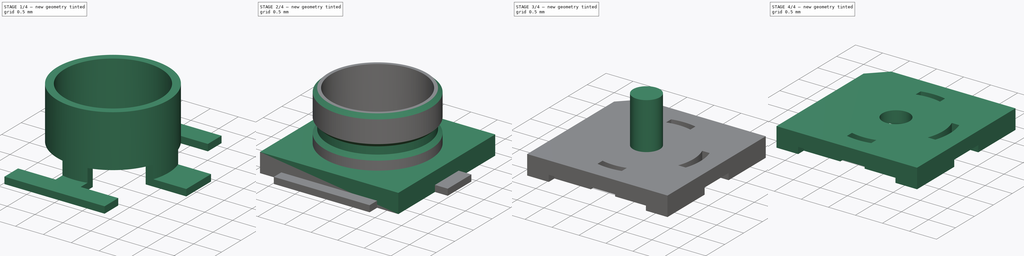
[diagram: build sequence overview — one tinted view per stage of 4, left to right]
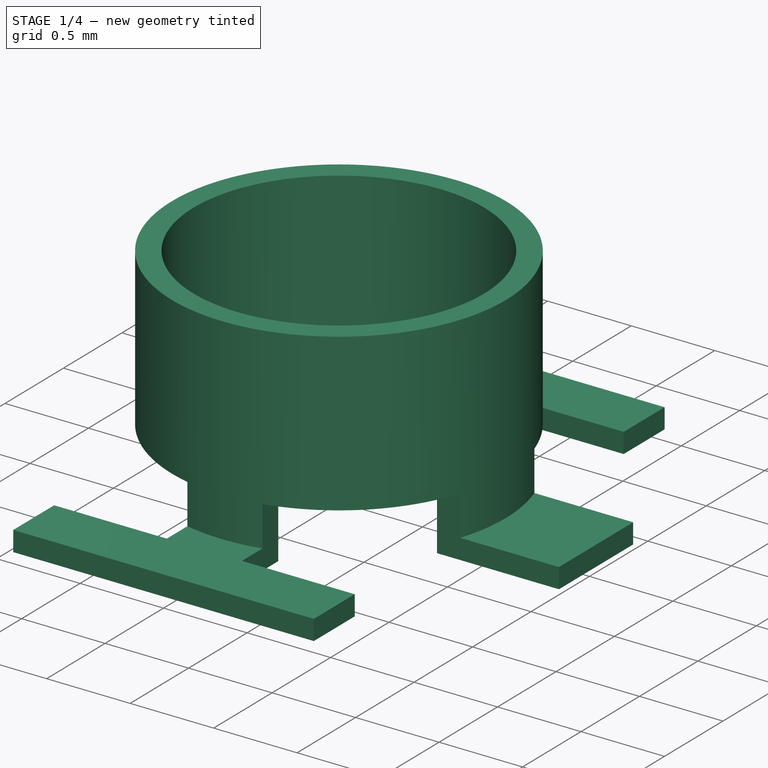
[diagram: stage 1 of 4 — iso view after this stage's code; geometry added in this stage tinted green]
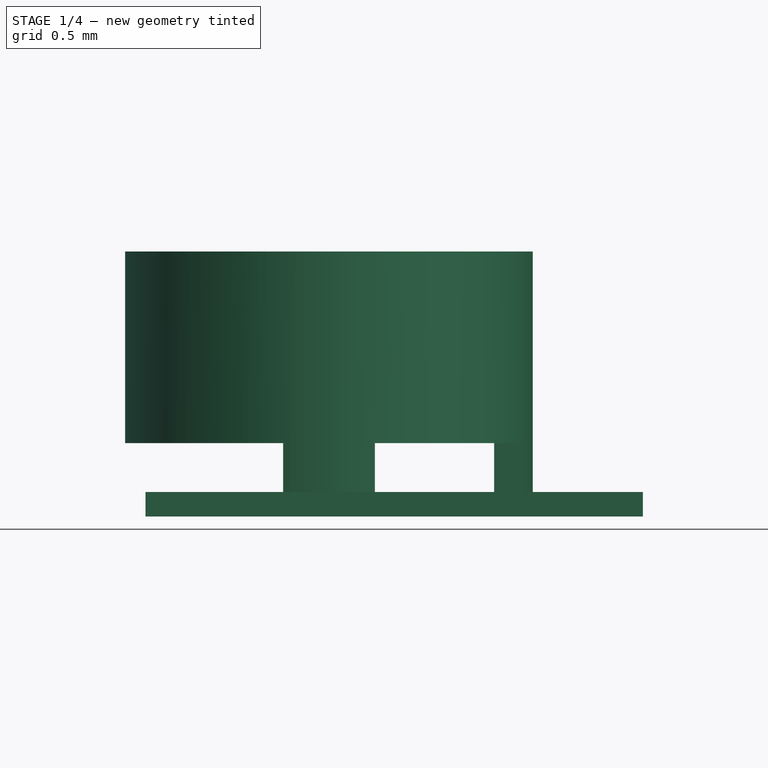
[diagram: stage 1 of 4 — front view after this stage's code; geometry added in this stage tinted green]
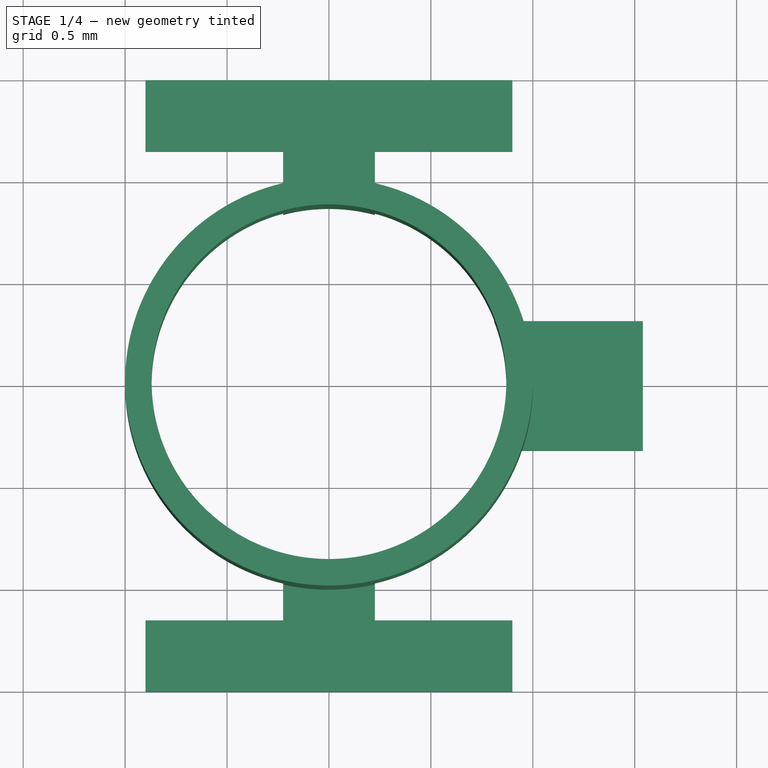
[diagram: stage 1 of 4 — top view after this stage's code; geometry added in this stage tinted green]
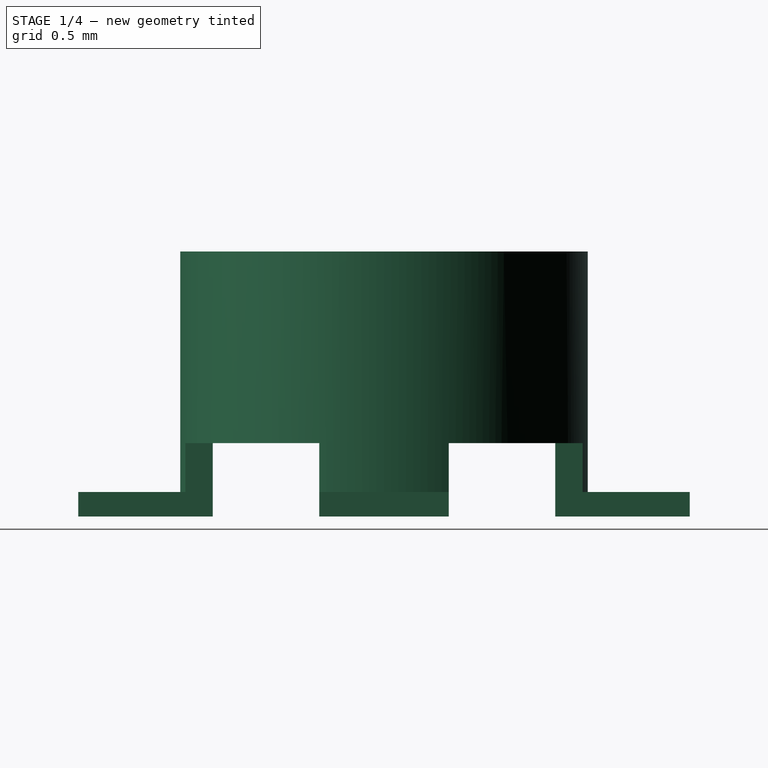
[diagram: stage 1 of 4 — right view after this stage's code; geometry added in this stage tinted green]
FCSTD DOCUMENT  (FreeCAD 1.0R38641 +468 (Git))
Label: MCRF_73412
License: All rights reserved
objects: Sketcher::SketchObject×7, PartDesign::Pad×5, PartDesign::Body×5, PartDesign::FeatureBase×2, Part::Cut×2, Spreadsheet::Sheet×1, PartDesign::Pocket×1, PartDesign::Groove×1, PartDesign::Fillet×1
note: 49 computed .brp shape members not serialized (recipe doc carries the construction recipe); baked Part::Feature solids carry a one-line shape summary decoded from their .brp

FEATURE [PartDesign::Body] Body
  AllowCompound = false
  Group = -> [Sketch,Pad]
  Origin = -> Origin
  Tip = -> Pad
FEATURE [Sketcher::SketchObject] Sketch001
  ArcFitTolerance = 1e-06
  AttachmentSupport = -> [XY_Plane001]
  FullyConstrained = true
  MakeInternals = false
  MapMode = 5
  expr: Constraints[2] = <<Master>>.gnd_od
  expr: Constraints[3] = <<Master>>.gnd_id
  sketch-geometry (2):
    g0: Circle CenterX=0 CenterY=0 CenterZ=0 NormalX=0 NormalY=0 NormalZ=1 AngleXU=0 Radius=1
    g1: Circle CenterX=0 CenterY=0 CenterZ=0 NormalX=0 NormalY=0 NormalZ=1 AngleXU=0 Radius=0.87
  constraints (4):
    c: Coincident(g0,g-1)
    c: Coincident(g1,g0)
    c: Diameter(g0) = 2
    c: Diameter(g1) = 1.74
FEATURE [PartDesign::Pad] Pad001
  Direction = (0,0,1)
  Length = 1.3
  Length2 = 10
  Profile = -> Sketch001
  ReferenceAxis = -> Sketch001 [N_Axis]
  Suppressed = false
  Type = 0
  expr: Length = <<Master>>.height
FEATURE [Sketcher::SketchObject] Sketch002
  ArcFitTolerance = 0
  AttachmentSupport = -> [XY_Plane001]
  FullyConstrained = true
  MakeInternals = false
  MapMode = 2
  expr: Constraints[39] = <<Master>>.gnd_id
  expr: Constraints[42] = <<Master>>.gnd_pin_len
  expr: Constraints[43] = <<Master>>.gnd_s_len / 2
  sketch-geometry (17):
    g0: LineSegment StartX=-1 StartY=-0.974359 StartZ=0 EndX=-1 EndY=0.974359 EndZ=0
    g1: LineSegment StartX=-1 StartY=0.974359 StartZ=0 EndX=-0.225 EndY=0.974359 EndZ=0
    g2: LineSegment StartX=-0.225 StartY=0.974359 StartZ=0 EndX=-0.225 EndY=-0.974359 EndZ=0
    g3: LineSegment StartX=-0.225 StartY=-0.974359 StartZ=0 EndX=-1 EndY=-0.974359 EndZ=0
    g4: LineSegment StartX=0.225 StartY=0.31749 StartZ=0 EndX=0.225 EndY=0.974359 EndZ=0
    g5: LineSegment StartX=0.225 StartY=0.974359 StartZ=0 EndX=0.948262 EndY=0.974359 EndZ=0
    g6: LineSegment StartX=0.948262 StartY=0.974359 StartZ=0 EndX=0.948262 EndY=0.31749 EndZ=0
    g7: LineSegment StartX=0.948262 StartY=0.31749 StartZ=0 EndX=0.225 EndY=0.31749 EndZ=0
    g8: LineSegment StartX=0.225 StartY=-0.31749 StartZ=0 EndX=0.225 EndY=-0.974359 EndZ=0
    g9: LineSegment StartX=0.225 StartY=-0.974359 StartZ=0 EndX=0.948262 EndY=-0.974359 EndZ=0
    g10: LineSegment StartX=0.948262 StartY=-0.974359 StartZ=0 EndX=0.948262 EndY=-0.31749 EndZ=0
    g11: LineSegment StartX=0.948262 StartY=-0.31749 StartZ=0 EndX=0.225 EndY=-0.31749 EndZ=0
    g12: LineSegment [constr] StartX=0.225 StartY=-0.31749 StartZ=0 EndX=0.225 EndY=0.31749 EndZ=0
    g13: Circle [constr] CenterX=0 CenterY=0 CenterZ=0 NormalX=0 NormalY=0 NormalZ=1 AngleXU=0 Radius=1
    g14: LineSegment [constr] StartX=0.948262 StartY=0.31749 StartZ=0 EndX=1.54 EndY=0.31749 EndZ=0
    g15: Circle [constr] CenterX=0 CenterY=0 CenterZ=0 NormalX=0 NormalY=0 NormalZ=1 AngleXU=0 Radius=0.87
    g16: LineSegment [constr] StartX=0.948262 StartY=0.31749 StartZ=0 EndX=0.81 EndY=0.31749 EndZ=0
  constraints (45):
    c: Coincident(g0,g1)
    c: Coincident(g1,g2)
    c: Coincident(g2,g3)
    c: Coincident(g3,g0)
    c: Coincident(g4,g5)
    c: Coincident(g5,g6)
    c: Coincident(g7,g4)
    c: Coincident(g8,g9)
    c: Coincident(g9,g10)
    c: Coincident(g10,g11)
    c: Coincident(g11,g8)
    c: Coincident(g12,g8)
    c: Coincident(g12,g4)
    c: Distance(g8,g2) = 0.45
    c: Tangent(g13,g0)
    c: Diameter(g13) = 2
    c: PointOnObject(g1,g13)
    c: PointOnObject(g4,g13)
    c: PointOnObject(g6,g13)
    c: Horizontal(g1)
    c: Vertical(g2)
    c: Horizontal(g3)
    c: Horizontal(g9)
    c: Vertical(g10)
    c: Vertical(g8)
    c: Horizontal(g11)
    c: Horizontal(g7)
    c: Vertical(g4)
    c: Horizontal(g5)
    c: Vertical(g6)
    c: Symmetric(g4,g8,g-1)
    c: Symmetric(g0,g0,g-1)
    c: Symmetric(g2,g8,g-2)
    c: PointOnObject(g10,g13)
    c: Coincident(g13,g-1)
    c: Horizontal(g14)
    c: Coincident(g14,g6)
    c: Coincident(g7,g6)
    c: Coincident(g15,g13)
    c: Diameter(g15) = 1.74
    c: Coincident(g16,g6)
    c: PointOnObject(g16,g15)
    c: DistanceX(g16,g14) = 0.73
    c: DistanceX(g13,g14) = 1.54
    c: Horizontal(g16)
FEATURE [PartDesign::Pocket] Pocket
  BaseFeature = -> Pad001
  Direction = (0,0,-1)
  Length = 0.36
  Length2 = 5
  Profile = -> Sketch002
  ReferenceAxis = -> Sketch002 [N_Axis]
  Reversed = true
  Suppressed = false
  Type = 0
  expr: Length = <<Master>>.body_h
FEATURE [Sketcher::SketchObject] Sketch003
  ArcFitTolerance = 0
  AttachmentSupport = -> [XY_Plane001]
  FullyConstrained = true
  MakeInternals = false
  MapMode = 5
  expr: Constraints[48] = <<Master>>.gnd_od
  expr: Constraints[49] = <<Master>>.gnd_id
  expr: Constraints[60] = <<Master>>.gnd_pin_len
  expr: Constraints[71] = <<Master>>.gnd_s_len / 2
  sketch-geometry (26):
    g0: LineSegment StartX=-0.225 StartY=-0.974359 StartZ=0 EndX=0.225 EndY=-0.974359 EndZ=0
    g1: LineSegment StartX=0.225 StartY=-0.974359 StartZ=0 EndX=0.225 EndY=-1.1504 EndZ=0
    g2: LineSegment StartX=0.225 StartY=-1.1504 StartZ=0 EndX=0.9 EndY=-1.1504 EndZ=0
    g3: LineSegment StartX=0.9 StartY=-1.1504 StartZ=0 EndX=0.9 EndY=-1.5 EndZ=0
    g4: LineSegment StartX=0.9 StartY=-1.5 StartZ=0 EndX=-0.9 EndY=-1.5 EndZ=0
    g5: LineSegment StartX=-0.9 StartY=-1.5 StartZ=0 EndX=-0.9 EndY=-1.1504 EndZ=0
    g6: LineSegment StartX=-0.9 StartY=-1.1504 StartZ=0 EndX=-0.225 EndY=-1.1504 EndZ=0
    g7: LineSegment StartX=-0.225 StartY=-1.1504 StartZ=0 EndX=-0.225 EndY=-0.974359 EndZ=0
    g8: LineSegment StartX=-0.225 StartY=0.974359 StartZ=0 EndX=0.225 EndY=0.974359 EndZ=0
    g9: LineSegment StartX=0.225 StartY=0.974359 StartZ=0 EndX=0.225 EndY=1.1504 EndZ=0
    g10: LineSegment StartX=0.225 StartY=1.1504 StartZ=0 EndX=0.9 EndY=1.1504 EndZ=0
    g11: LineSegment StartX=0.9 StartY=1.1504 StartZ=0 EndX=0.9 EndY=1.5 EndZ=0
    g12: LineSegment StartX=0.9 StartY=1.5 StartZ=0 EndX=-0.9 EndY=1.5 EndZ=0
    g13: LineSegment StartX=-0.9 StartY=1.5 StartZ=0 EndX=-0.9 EndY=1.1504 EndZ=0
    g14: LineSegment StartX=-0.9 StartY=1.1504 StartZ=0 EndX=-0.225 EndY=1.1504 EndZ=0
    g15: LineSegment StartX=-0.225 StartY=1.1504 StartZ=0 EndX=-0.225 EndY=0.974359 EndZ=0
    g16: LineSegment StartX=0.948262 StartY=-0.31749 StartZ=0 EndX=0.948262 EndY=0.31749 EndZ=0
    g17: LineSegment StartX=0.948262 StartY=0.31749 StartZ=0 EndX=1.54 EndY=0.31749 EndZ=0
    g18: LineSegment StartX=1.54 StartY=0.31749 StartZ=0 EndX=1.54 EndY=-0.31749 EndZ=0
    g19: LineSegment StartX=1.54 StartY=-0.31749 StartZ=0 EndX=0.948262 EndY=-0.31749 EndZ=0
    g20: Circle [constr] CenterX=0 CenterY=0 CenterZ=0 NormalX=0 NormalY=0 NormalZ=1 AngleXU=0 Radius=1
    g21: Circle [constr] CenterX=0 CenterY=0 CenterZ=0 NormalX=0 NormalY=0 NormalZ=1 AngleXU=0 Radius=0.87
    g22: LineSegment [constr] StartX=0.225 StartY=0.974359 StartZ=0 EndX=0.225 EndY=0.840402 EndZ=0
    g23: LineSegment [constr] StartX=0.225 StartY=0.840402 StartZ=0 EndX=0.225 EndY=-0.974359 EndZ=0
    g24: LineSegment [constr] StartX=0.948262 StartY=0.31749 StartZ=0 EndX=0.81 EndY=0.31749 EndZ=0
    g25: LineSegment [constr] StartX=-0.225 StartY=0.974359 StartZ=0 EndX=-0.225 EndY=-0.974359 EndZ=0
  constraints (72):
    c: Coincident(g0,g1)
    c: Coincident(g1,g2)
    c: Coincident(g2,g3)
    c: Coincident(g3,g4)
    c: Coincident(g4,g5)
    c: Coincident(g5,g6)
    c: Coincident(g6,g7)
    c: Coincident(g7,g0)
    c: Equal(g7,g1)
    c: Equal(g6,g2)
    c: Coincident(g8,g9)
    c: Coincident(g9,g10)
    c: Coincident(g10,g11)
    c: Coincident(g11,g12)
    c: Coincident(g12,g13)
    c: Coincident(g13,g14)
    c: Coincident(g14,g15)
    c: Coincident(g15,g8)
    c: Equal(g15,g9)
    c: Equal(g9,g7)
    c: Equal(g14,g10)
    c: Equal(g12,g4)
    c: Equal(g13,g5)
    c: Coincident(g16,g17)
    c: Coincident(g17,g18)
    c: Coincident(g18,g19)
    c: Coincident(g19,g16)
    c: Vertical(g13)
    c: Vertical(g11)
    c: Horizontal(g17)
    c: Horizontal(g19)
    c: Horizontal(g2)
    c: Horizontal(g6)
    c: Vertical(g5)
    c: Vertical(g3)
    c: Vertical(g15)
    c: Vertical(g9)
    c: Vertical(g16)
    c: Horizontal(g4)
    c: Coincident(g20,g-1)
    c: Coincident(g21,g20)
    c: Coincident(g22,g8)
    c: Vertical(g22)
    c: Coincident(g23,g0)
    c: Vertical(g23)
    c: Coincident(g24,g16)
    c: PointOnObject(g24,g21)
    c: Horizontal(g24)
    c: Diameter(g20) = 2
    c: Diameter(g21) = 1.74
    c: Symmetric(g8,g8,g-2)
    c: Coincident(g25,g8)
    c: Coincident(g25,g0)
    c: Vertical(g25)
    c: Horizontal(g0)
    c: PointOnObject(g8,g20)
    c: PointOnObject(g0,g20)
    c: DistanceY(g4,g12) = 3
    c: DistanceY(g22,g10) = 0.31
    c: Horizontal(g14)
    c: Distance(g24,g17) = 0.73
    c: Vertical(g7)
    c: Vertical(g1)
    c: Coincident(g22,g23)
    c: PointOnObject(g22,g21)
    c: Symmetric(g12,g11,g-2)
    c: DistanceX(g12,g12) = 1.8
    c: PointOnObject(g17,g20)
    c: Vertical(g18)
    c: PointOnObject(g16,g20)
    c: Distance(g14,g9) = 0.45
    c: DistanceX(g20,g18) = 1.54
FEATURE [PartDesign::Pad] Pad002
  BaseFeature = -> Pocket
  Direction = (0,0,1)
  Length = 0.12
  Length2 = 10
  Profile = -> Sketch003
  ReferenceAxis = -> Sketch003 [N_Axis]
  Refine = true
  Suppressed = false
  Type = 0
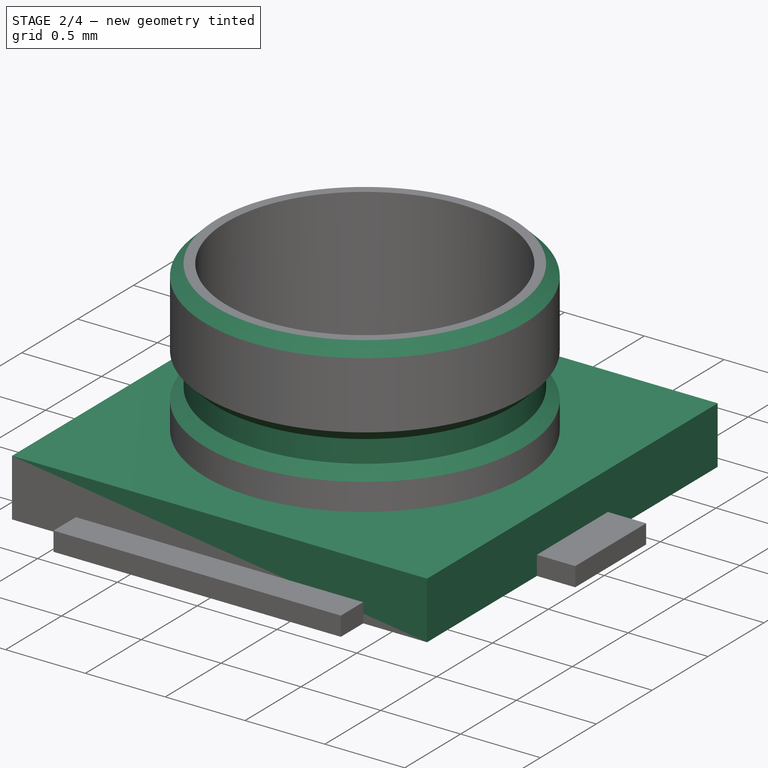
[diagram: stage 2 of 4 — iso view after this stage's code; geometry added in this stage tinted green]
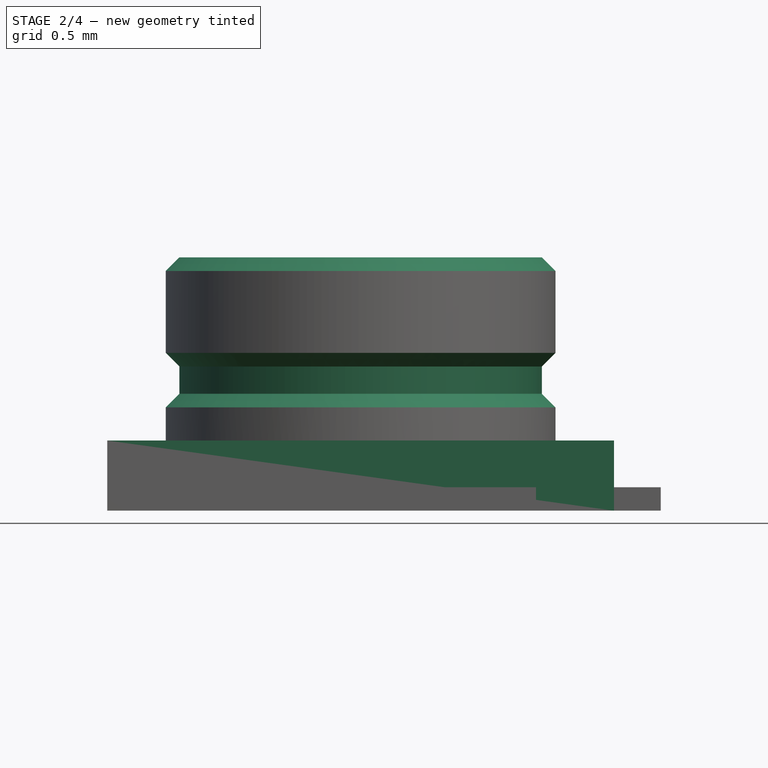
[diagram: stage 2 of 4 — front view after this stage's code; geometry added in this stage tinted green]
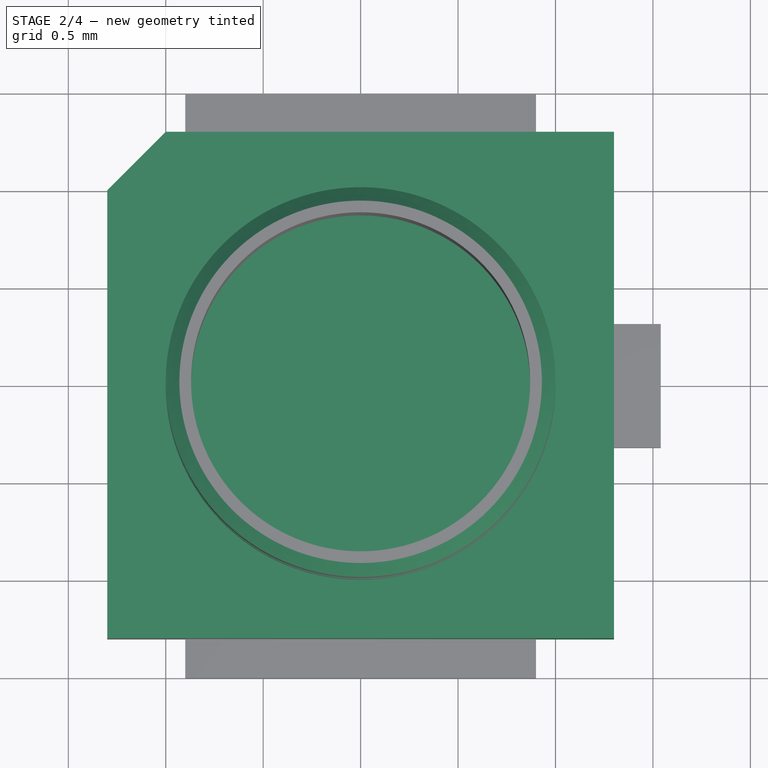
[diagram: stage 2 of 4 — top view after this stage's code; geometry added in this stage tinted green]
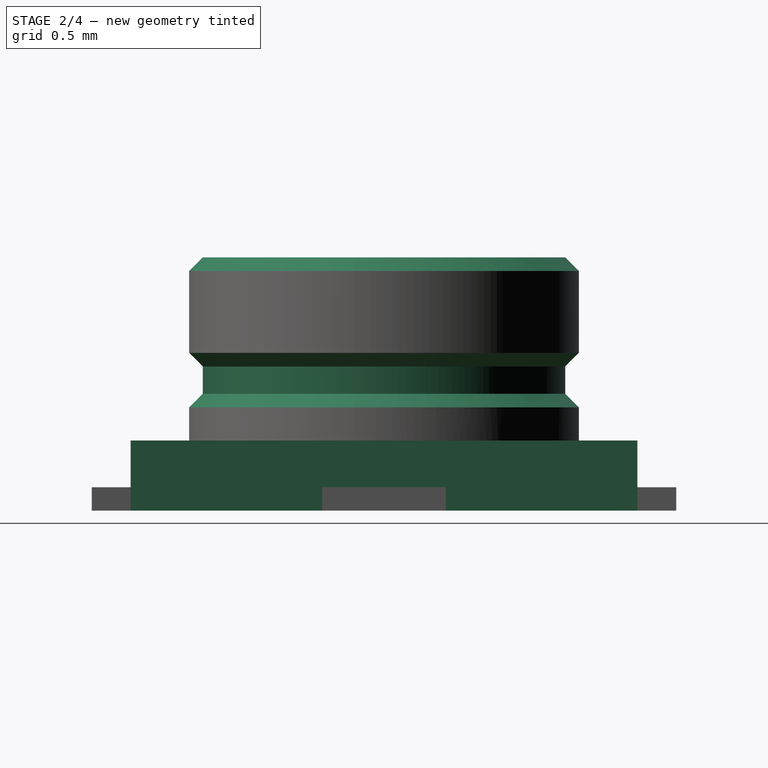
[diagram: stage 2 of 4 — right view after this stage's code; geometry added in this stage tinted green]
FEATURE [Spreadsheet::Sheet] Spreadsheet  label="Master"
  cells = A1='Constants; A2='body h; B2(body_h)==0.36 mm; C2='Body square height; A3='height; B3(height)==1.3 mm; C3='Height of connector; A4='gnd od; B4(gnd_od)==2 mm; C4='Shield ring outside diameter; A5='gnd id; B5(gnd_id)==1.74 mm; C5='Shield ring inside diameter; A6='gnd s len; B6(gnd_s_len)==3.08 mm; C6='Ground pin to signal pin width; A7='gnd pin len; B7(gnd_pin_len)==0.73 mm; C7='Ground pin length; A9='Calculated
FEATURE [Sketcher::SketchObject] Sketch
  ArcFitTolerance = 1e-06
  AttachmentSupport = -> [XY_Plane]
  FullyConstrained = true
  MakeInternals = false
  MapMode = 5
  sketch-geometry (7):
    g0: LineSegment StartX=-1.3 StartY=1 StartZ=0 EndX=-1.3 EndY=-1.3 EndZ=0
    g1: LineSegment StartX=-1.3 StartY=-1.3 StartZ=0 EndX=1.3 EndY=-1.3 EndZ=0
    g2: LineSegment StartX=1.3 StartY=-1.3 StartZ=0 EndX=1.3 EndY=1.3 EndZ=0
    g3: LineSegment StartX=1.3 StartY=1.3 StartZ=0 EndX=-1 EndY=1.3 EndZ=0
    g4: LineSegment StartX=-1 StartY=1.3 StartZ=0 EndX=-1.3 EndY=1 EndZ=0
    g5: LineSegment [constr] StartX=-1 StartY=1.3 StartZ=0 EndX=-1.3 EndY=1.3 EndZ=0
    g6: LineSegment [constr] StartX=-1.3 StartY=1 StartZ=0 EndX=-1.3 EndY=1.3 EndZ=0
  constraints (19):
    c: Coincident(g0,g1)
    c: Coincident(g1,g2)
    c: Coincident(g2,g3)
    c: Vertical(g0)
    c: Vertical(g2)
    c: Horizontal(g1)
    c: Horizontal(g3)
    c: Symmetric(g0,g2,g-1)
    c: Distance(g1,g1) = 2.6
    c: Equal(g1,g2)
    c: Coincident(g3,g4)
    c: Coincident(g0,g4)
    c: Coincident(g5,g3)
    c: Horizontal(g5)
    c: Coincident(g6,g0)
    c: Coincident(g6,g5)
    c: Vertical(g6)
    c: Equal(g6,g5)
    c: DistanceX(g5,g5) = 0.3
FEATURE [PartDesign::Pad] Pad
  Direction = (0,0,1)
  Length = 0.36
  Length2 = 10
  Profile = -> Sketch
  ReferenceAxis = -> Sketch [N_Axis]
  Suppressed = false
  Type = 0
  expr: Length = <<Master>>.body_h
FEATURE [Sketcher::SketchObject] Sketch005
  ArcFitTolerance = 0
  AttachmentSupport = -> [XZ_Plane001]
  ExternalGeometry = -> [Pad002]
  FullyConstrained = true
  MakeInternals = false
  MapMode = 5
  Placement = pos=(0,0,0) rot=(1,0,0;1.5708rad)
  expr: Constraints[22] = <<Master>>.gnd_od / 2
  expr: Constraints[23] = <<Master>>.height
  sketch-geometry (9):
    g0: LineSegment StartX=1 StartY=0.81 StartZ=0 EndX=0.93 EndY=0.74 EndZ=0
    g1: LineSegment StartX=0.93 StartY=0.74 StartZ=0 EndX=0.93 EndY=0.6 EndZ=0
    g2: LineSegment StartX=0.93 StartY=0.6 StartZ=0 EndX=1 EndY=0.53 EndZ=0
    g3: LineSegment StartX=0.93 StartY=1.3 StartZ=0 EndX=1 EndY=1.23 EndZ=0
    g4: LineSegment [constr] StartX=0.93 StartY=1.3 StartZ=0 EndX=0.93 EndY=0.74 EndZ=0
    g5: LineSegment StartX=0.93 StartY=1.3 StartZ=0 EndX=1 EndY=1.3 EndZ=0
    g6: LineSegment StartX=1 StartY=1.3 StartZ=0 EndX=1 EndY=1.23 EndZ=0
    g7: LineSegment StartX=1 StartY=0.81 StartZ=0 EndX=1 EndY=0.53 EndZ=0
    g8: LineSegment [constr] StartX=1 StartY=1.23 StartZ=0 EndX=1 EndY=0.81 EndZ=0
  constraints (25):
    c: Coincident(g0,g1)
    c: Coincident(g1,g2)
    c: Vertical(g1)
    c: DistanceX(g1,g2) = 0.07
    c: Coincident(g4,g0)
    c: Vertical(g4)
    c: Coincident(g5,g3)
    c: Horizontal(g5)
    c: Coincident(g6,g5)
    c: Coincident(g6,g3)
    c: Coincident(g7,g0)
    c: Coincident(g7,g2)
    c: Vertical(g7)
    c: Coincident(g8,g3)
    c: Coincident(g8,g0)
    c: Vertical(g8)
    c: Distance(g8,g8) = 0.42
    c: Distance(g7,g7) = 0.28
    c: Vertical(g6)
    c: Distance(g5,g0) = 0.49
    c: Angle(g1,g0) = 2.35619
    c: Distance(g1,g1) = 0.14
    c: DistanceX(g-1,g5) = 1
    c: DistanceY(g-1,g5) = 1.3
    c: Coincident(g4,g3)
FEATURE [PartDesign::Groove] Groove
  Angle = 360
  Angle2 = 60
  Axis = (0,2e-16,1)
  Base = (0,0,0)
  BaseFeature = -> Pad002
  Profile = -> Sketch005
  ReferenceAxis = -> Sketch005 [V_Axis]
  Suppressed = false
  Type = 0
FEATURE [PartDesign::Body] Body002
  AllowCompound = false
  Group = -> [Sketch007,Pad003,Sketch008,Pad004,Fillet]
  Origin = -> Origin002
  Tip = -> Fillet
FEATURE [PartDesign::FeatureBase] Clone
  BaseFeature = -> Body001
  Suppressed = false
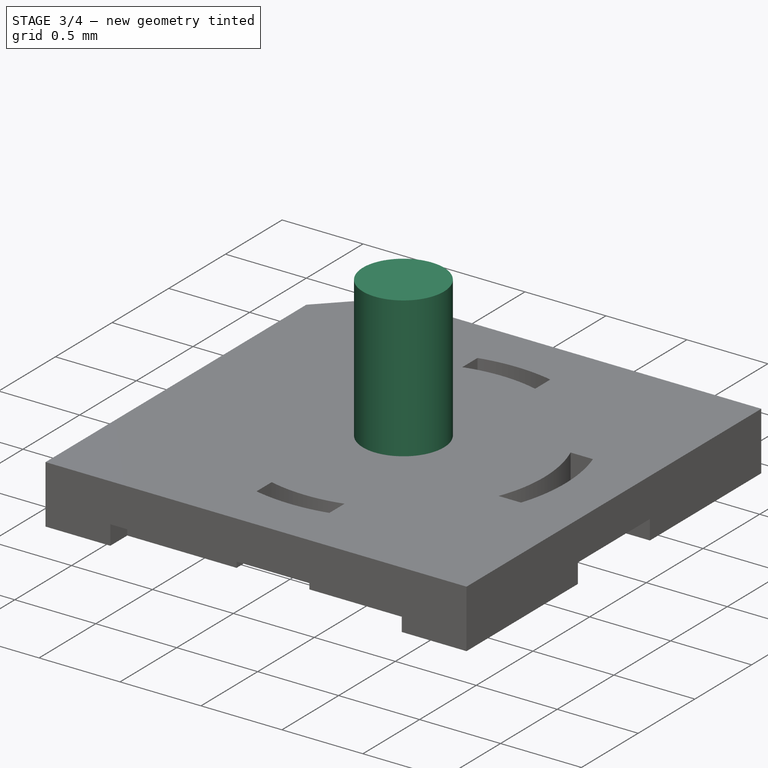
[diagram: stage 3 of 4 — iso view after this stage's code; geometry added in this stage tinted green]
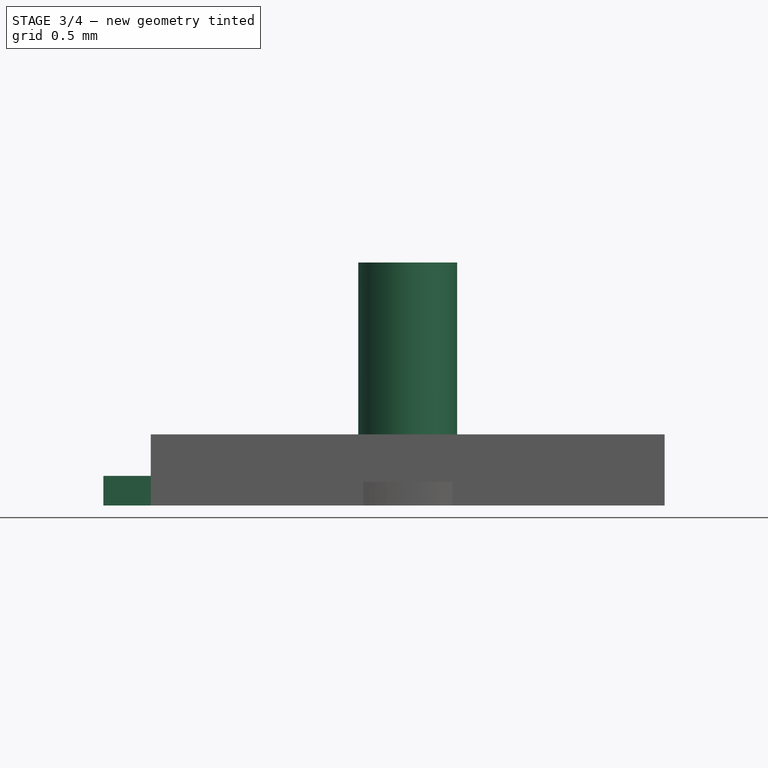
[diagram: stage 3 of 4 — front view after this stage's code; geometry added in this stage tinted green]
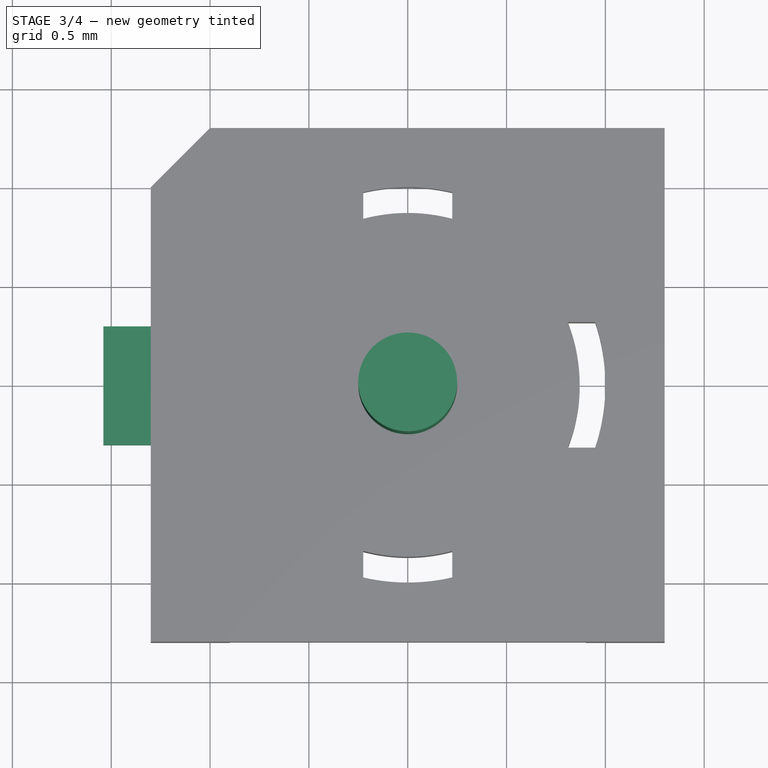
[diagram: stage 3 of 4 — top view after this stage's code; geometry added in this stage tinted green]
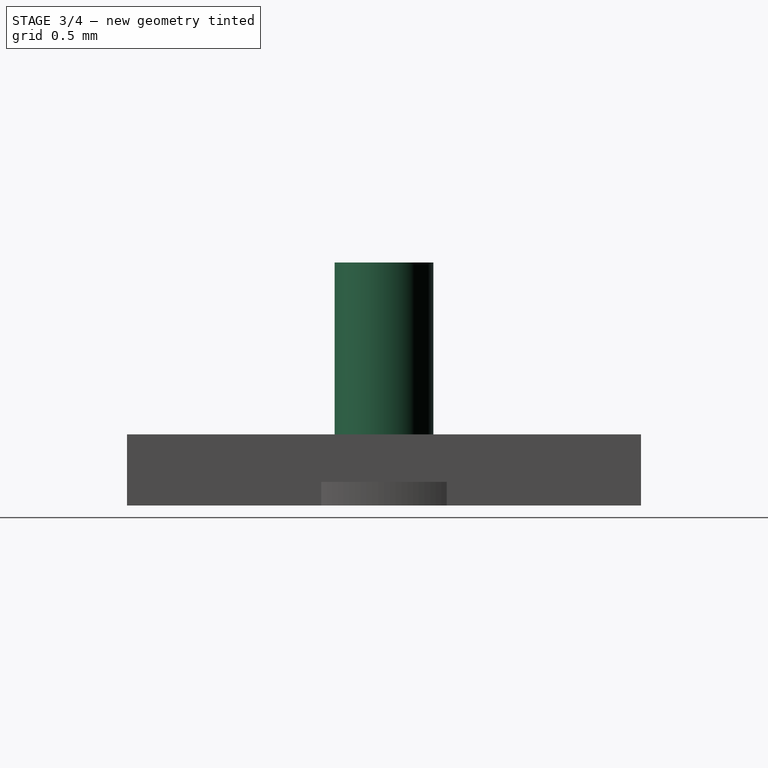
[diagram: stage 3 of 4 — right view after this stage's code; geometry added in this stage tinted green]
FEATURE [PartDesign::Body] Body001
  AllowCompound = false
  Group = -> [Sketch001,Pad001,Sketch002,Pocket,Sketch003,Pad002,Sketch005,Groove]
  Origin = -> Origin001
  Tip = -> Groove
FEATURE [Sketcher::SketchObject] Sketch007
  ArcFitTolerance = 0
  AttachmentSupport = -> [XY_Plane002]
  FullyConstrained = true
  MakeInternals = false
  MapMode = 5
  sketch-geometry (1):
    g0: Circle CenterX=0 CenterY=0 CenterZ=0 NormalX=0 NormalY=0 NormalZ=1 AngleXU=0 Radius=0.25
  constraints (2):
    c: Coincident(g0,g-1)
    c: Radius(g0) = 0.25
FEATURE [PartDesign::Pad] Pad003
  Direction = (0,0,1)
  Length = 1.23
  Length2 = 10
  Profile = -> Sketch007
  ReferenceAxis = -> Sketch007 [N_Axis]
  Suppressed = false
  Type = 0
FEATURE [Sketcher::SketchObject] Sketch008
  ArcFitTolerance = 0
  AttachmentSupport = -> [XY_Plane002]
  FullyConstrained = true
  MakeInternals = false
  MapMode = 5
  expr: Constraints[32] = <<Master>>.gnd_s_len / 2
  sketch-geometry (15):
    g0: LineSegment StartX=-1.54 StartY=-0.3 StartZ=0 EndX=-0.5 EndY=-0.3 EndZ=0
    g1: LineSegment StartX=-0.5 StartY=-0.3 StartZ=0 EndX=-0.4 EndY=-0.4 EndZ=0
    g2: LineSegment StartX=-0.4 StartY=-0.4 StartZ=0 EndX=0.4 EndY=-0.4 EndZ=0
    g3: LineSegment StartX=0.4 StartY=-0.4 StartZ=0 EndX=0.5 EndY=-0.3 EndZ=0
    g4: LineSegment StartX=0.5 StartY=-0.3 StartZ=0 EndX=0.5 EndY=0.3 EndZ=0
    g5: LineSegment StartX=0.5 StartY=0.3 StartZ=0 EndX=0.4 EndY=0.4 EndZ=0
    g6: LineSegment StartX=0.4 StartY=0.4 StartZ=0 EndX=-0.4 EndY=0.4 EndZ=0
    g7: LineSegment StartX=-0.4 StartY=0.4 StartZ=0 EndX=-0.5 EndY=0.3 EndZ=0
    g8: LineSegment StartX=-0.5 StartY=0.3 StartZ=0 EndX=-1.54 EndY=0.3 EndZ=0
    g9: LineSegment StartX=-1.54 StartY=0.3 StartZ=0 EndX=-1.54 EndY=-0.3 EndZ=0
    g10: LineSegment [constr] StartX=-0.5 StartY=-0.3 StartZ=0 EndX=-0.5 EndY=0.3 EndZ=0
    g11: LineSegment [constr] StartX=0 StartY=0 StartZ=0 EndX=0 EndY=-0.4 EndZ=0
    g12: LineSegment [constr] StartX=0 StartY=0 StartZ=0 EndX=0 EndY=0.4 EndZ=0
    g13: LineSegment [constr] StartX=0 StartY=0 StartZ=0 EndX=-0.5 EndY=0 EndZ=0
    g14: LineSegment [constr] StartX=0 StartY=0 StartZ=0 EndX=0.5 EndY=0 EndZ=0
  constraints (43):
    c: Coincident(g0,g1)
    c: Coincident(g1,g2)
    c: Coincident(g2,g3)
    c: Coincident(g3,g4)
    c: Coincident(g4,g5)
    c: Coincident(g5,g6)
    c: Coincident(g6,g7)
    c: Coincident(g7,g8)
    c: Coincident(g8,g9)
    c: Coincident(g9,g0)
    c: Equal(g4,g9)
    c: Equal(g6,g2)
    c: Coincident(g10,g0)
    c: Coincident(g10,g7)
    c: PointOnObject(g11,g2)
    c: PointOnObject(g12,g6)
    c: Equal(g12,g11)
    c: PointOnObject(g13,g10)
    c: PointOnObject(g14,g4)
    c: Equal(g14,g13)
    c: Angle(g5,g4) = 2.35619
    c: Distance(g9,g9) = 0.6
    c: Horizontal(g8)
    c: Horizontal(g0)
    c: Horizontal(g2)
    c: Horizontal(g6)
    c: Vertical(g10)
    c: Horizontal(g13)
    c: Horizontal(g14)
    c: Vertical(g12)
    c: Vertical(g11)
    c: Vertical(g4)
    c: DistanceX(g0,g11) = 1.54
    c: DistanceX(g0,g11) = 0.5
    c: DistanceY(g2,g14) = 0.4
    c: Symmetric(g8,g0,g-1)
    c: Symmetric(g14,g13,g-2)
    c: Symmetric(g12,g11,g-1)
    c: Coincident(g11,g-1)
    c: Coincident(g11,g13)
    c: Equal(g7,g1)
    c: Equal(g1,g3)
    c: Equal(g3,g5)
FEATURE [PartDesign::Pad] Pad004
  BaseFeature = -> Pad003
  Direction = (0,0,1)
  Length = 0.15
  Length2 = 10
  Profile = -> Sketch008
  ReferenceAxis = -> Sketch008 [N_Axis]
  Refine = true
  Suppressed = false
  Type = 0
FEATURE [PartDesign::Body] Body004
  AllowCompound = false
  Group = -> [Clone001]
  Origin = -> Origin004
  Tip = -> Clone001
FEATURE [Part::Cut] Cut
  Base = -> Body
  Tool = -> Body003
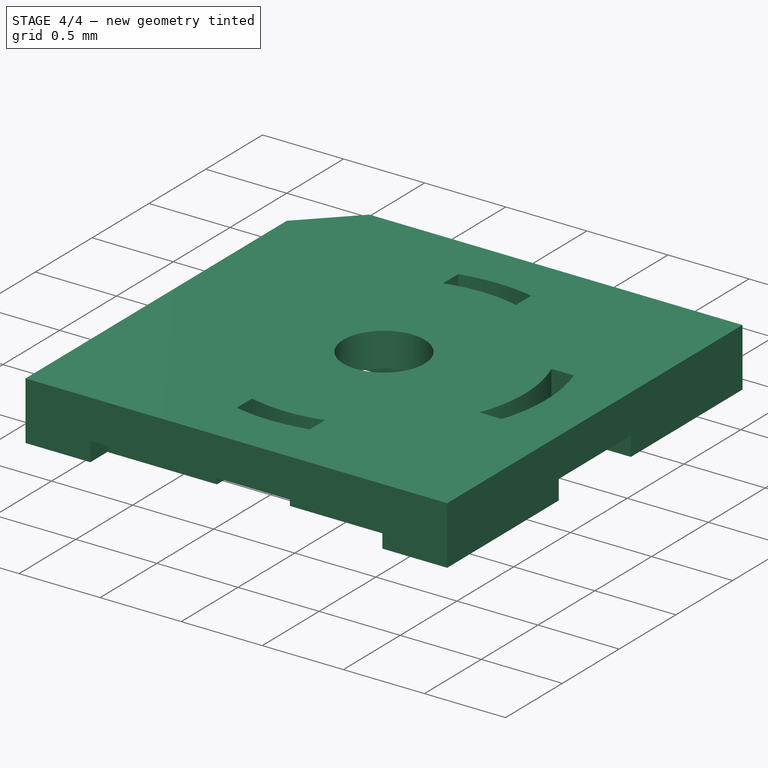
[diagram: stage 4 of 4 — iso view after this stage's code; geometry added in this stage tinted green]
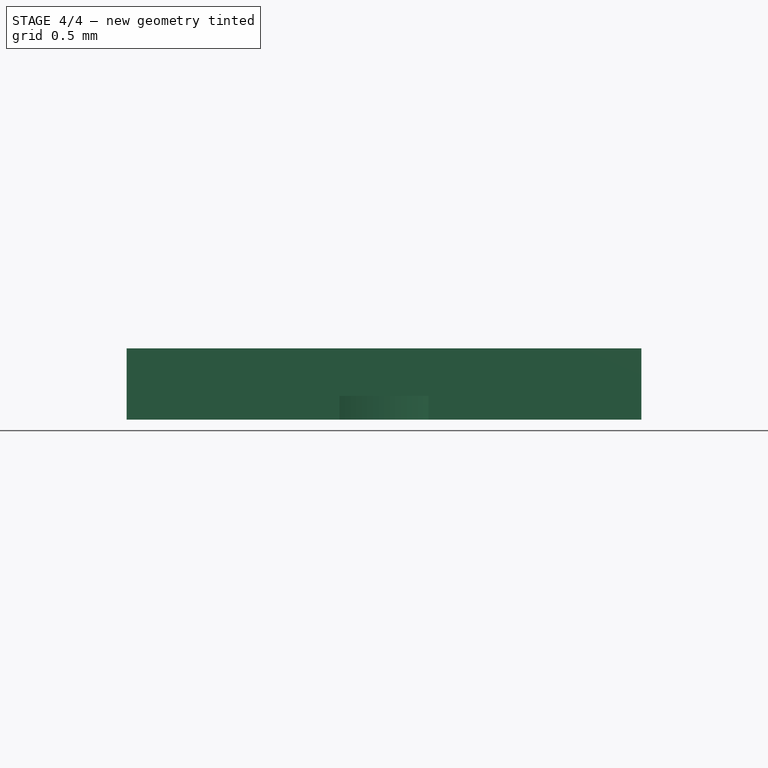
[diagram: stage 4 of 4 — front view after this stage's code; geometry added in this stage tinted green]
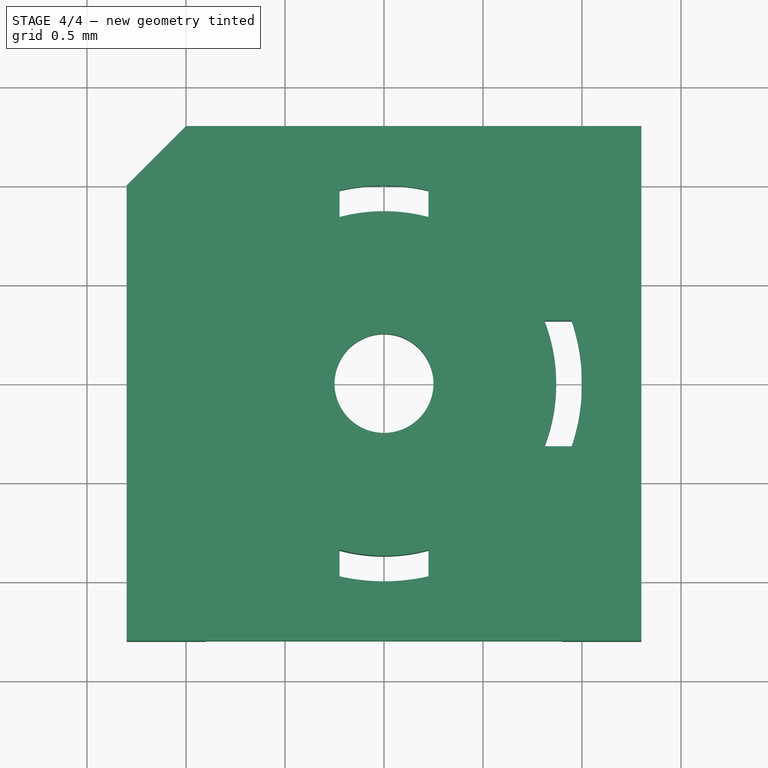
[diagram: stage 4 of 4 — top view after this stage's code; geometry added in this stage tinted green]
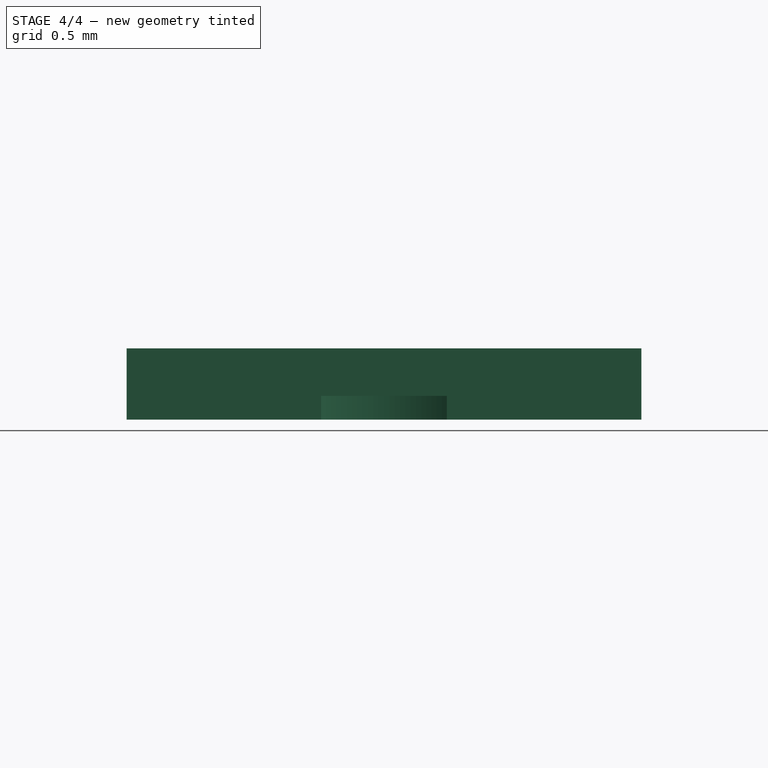
[diagram: stage 4 of 4 — right view after this stage's code; geometry added in this stage tinted green]
FEATURE [PartDesign::Fillet] Fillet
  Base = -> Pad004 [Edge33]
  BaseFeature = -> Pad004
  Radius = 0.2
  SupportTransform = false
  Suppressed = false
  UseAllEdges = false
FEATURE [PartDesign::Body] Body003
  AllowCompound = false
  Group = -> [Clone]
  Origin = -> Origin003
  Tip = -> Clone
FEATURE [PartDesign::FeatureBase] Clone001
  BaseFeature = -> Body002
  Suppressed = false
FEATURE [Part::Cut] Cut001
  Base = -> Cut
  Refine = true
  Tool = -> Body004
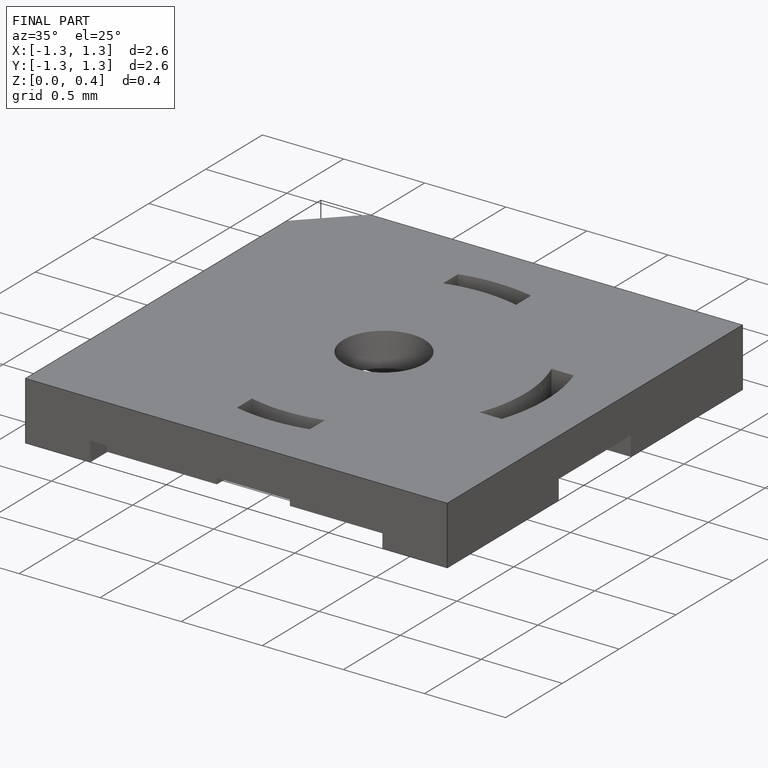
[diagram: finished part — iso view with bounding-box wireframe]
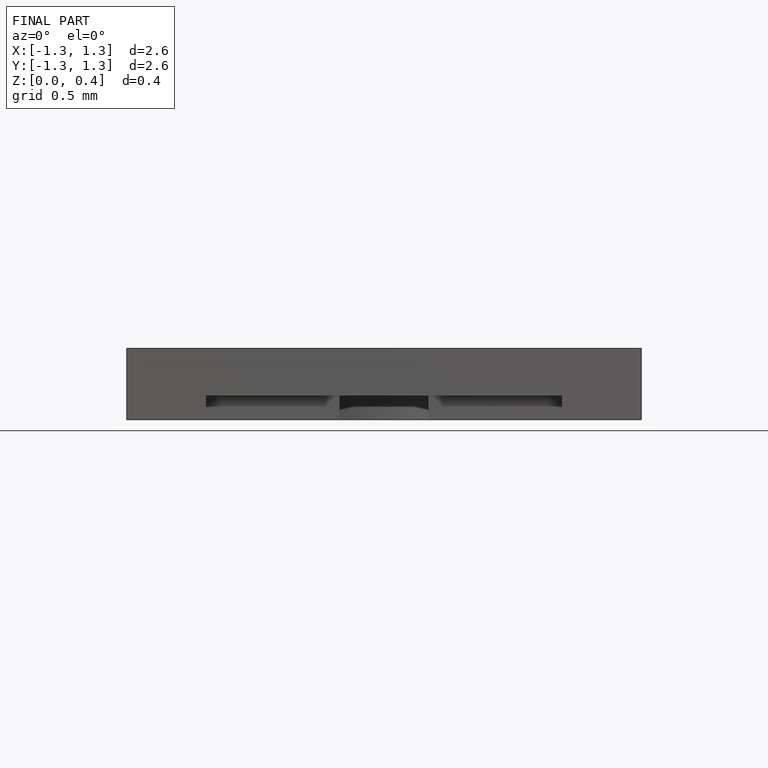
[diagram: finished part — front view with bounding-box wireframe]
